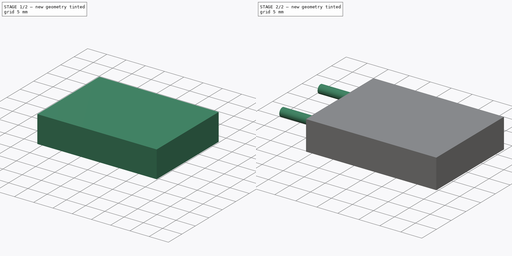
[diagram: build sequence overview — one tinted view per stage of 2, left to right]
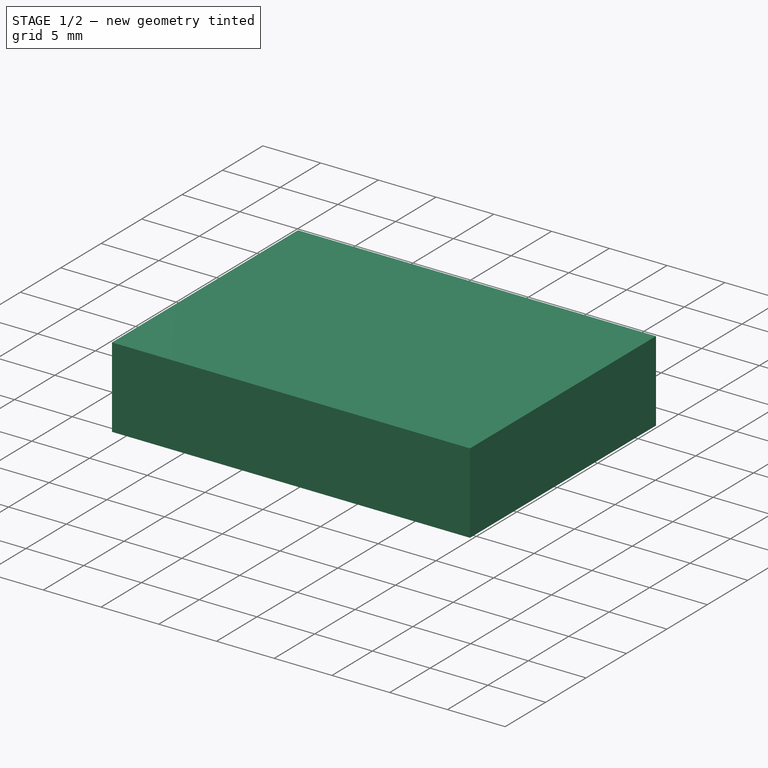
[diagram: stage 1 of 2 — iso view after this stage's code; geometry added in this stage tinted green]
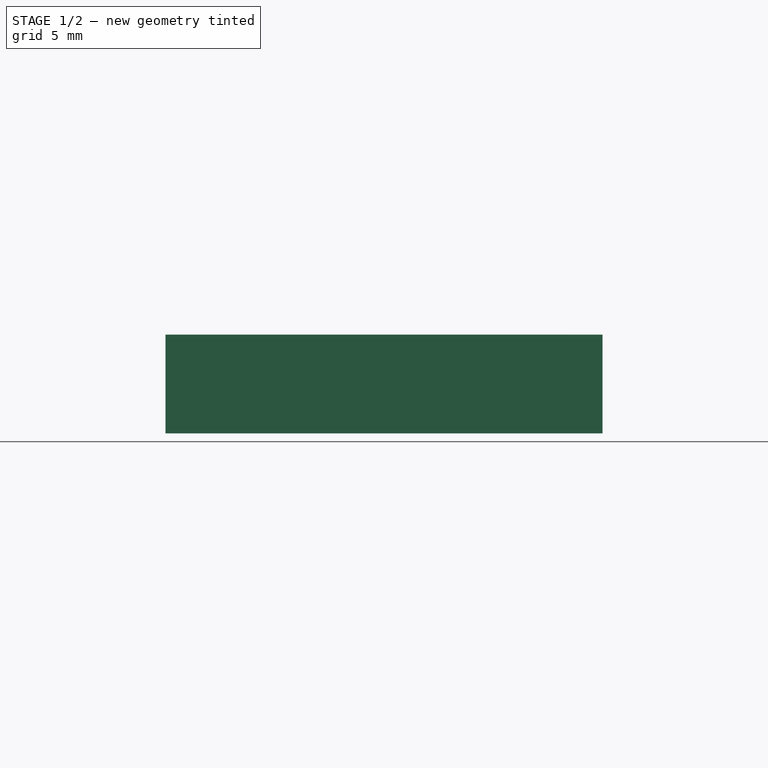
[diagram: stage 1 of 2 — front view after this stage's code; geometry added in this stage tinted green]
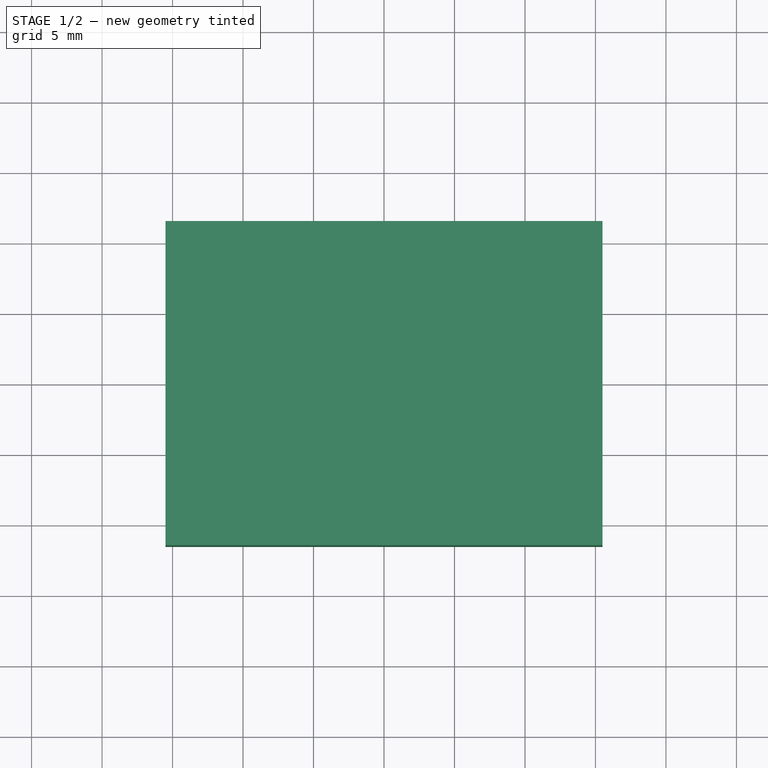
[diagram: stage 1 of 2 — top view after this stage's code; geometry added in this stage tinted green]
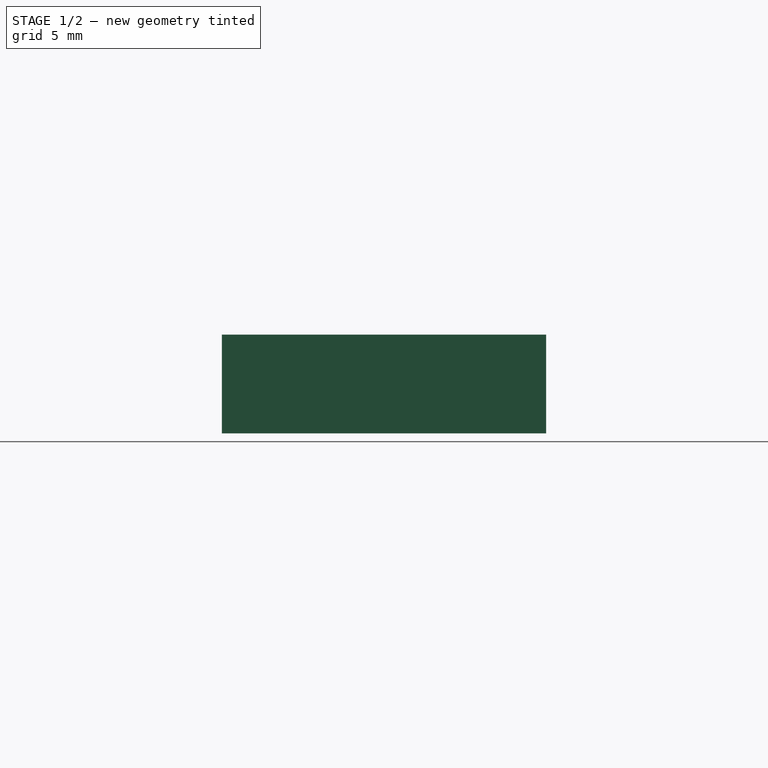
[diagram: stage 1 of 2 — right view after this stage's code; geometry added in this stage tinted green]
FCSTD DOCUMENT  (FreeCAD 0.18RUnknown)
Label: d4r2
License: All rights reserved
LicenseURL: http://en.wikipedia.org/wiki/All_rights_reserved
objects: Sketcher::SketchObject×2, PartDesign::Pad×2, PartDesign::Body×1
note: 7 computed .brp shape members not serialized (recipe doc carries the construction recipe); baked Part::Feature solids carry a one-line shape summary decoded from their .brp

FEATURE [Sketcher::SketchObject] Sketch
  MapMode = 5
  Support = -> [XY_Plane]
  sketch-geometry (4):
    g0: LineSegment StartX=-15.5 StartY=11.5 StartZ=0 EndX=15.5 EndY=11.5 EndZ=0
    g1: LineSegment StartX=15.5 StartY=-11.5 StartZ=0 EndX=-15.5 EndY=-11.5 EndZ=0
    g2: LineSegment StartX=-15.5 StartY=-11.5 StartZ=0 EndX=-15.5 EndY=11.5 EndZ=0
    g3: LineSegment StartX=15.5 StartY=11.5 StartZ=0 EndX=15.5 EndY=-11.5 EndZ=0
  constraints (11):
    c: Coincident(g1,g2)
    c: Coincident(g2,g0)
    c: Horizontal(g0)
    c: Horizontal(g1)
    c: Vertical(g2)
    c: DistanceX(g0,g0) = 31
    c: DistanceY(g1,g0) = 23
    c: Symmetric(g0,g1,g-1)
    c: Coincident(g3,g0)
    c: Coincident(g3,g1)
    c: Vertical(g3)
FEATURE [PartDesign::Pad] Pad
  Length = 7
  Length2 = 100
  Midplane = true
  Profile = -> Sketch
  Type = 0
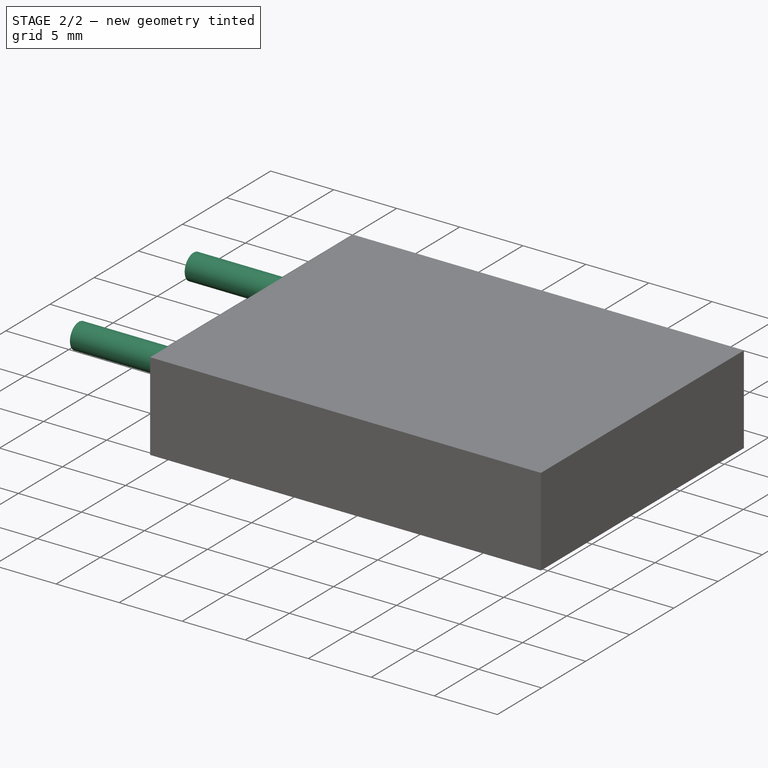
[diagram: stage 2 of 2 — iso view after this stage's code; geometry added in this stage tinted green]
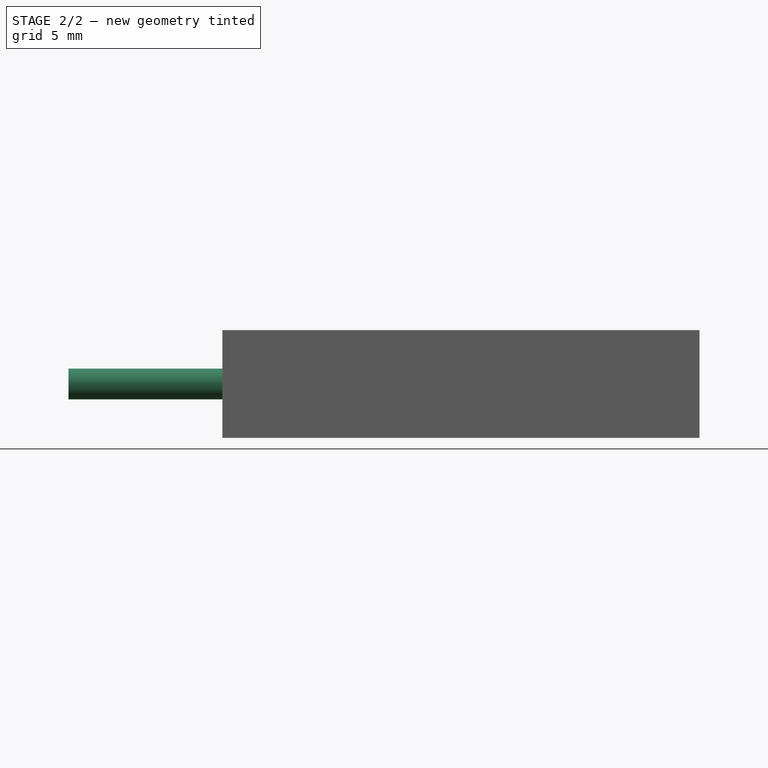
[diagram: stage 2 of 2 — front view after this stage's code; geometry added in this stage tinted green]
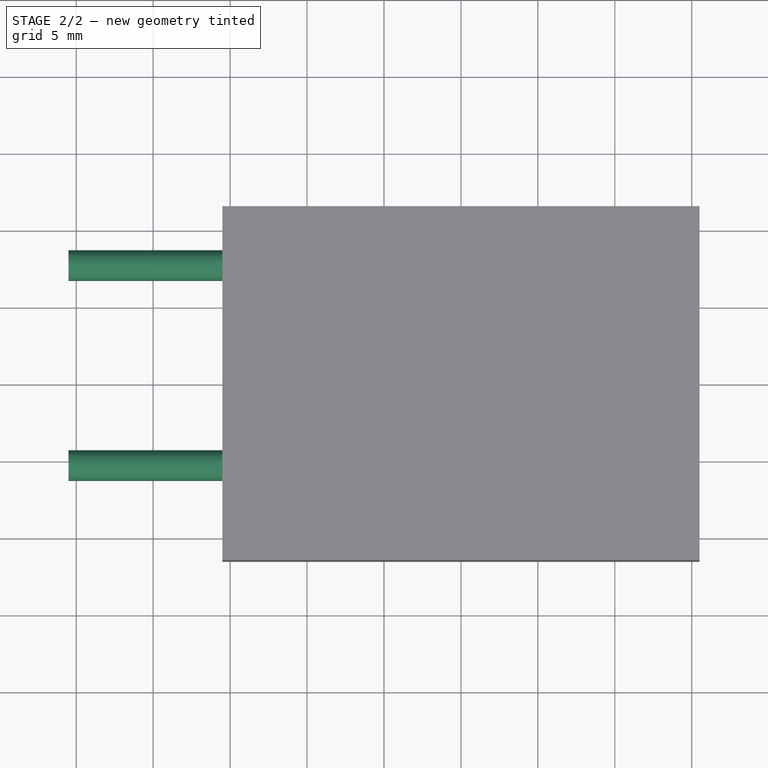
[diagram: stage 2 of 2 — top view after this stage's code; geometry added in this stage tinted green]
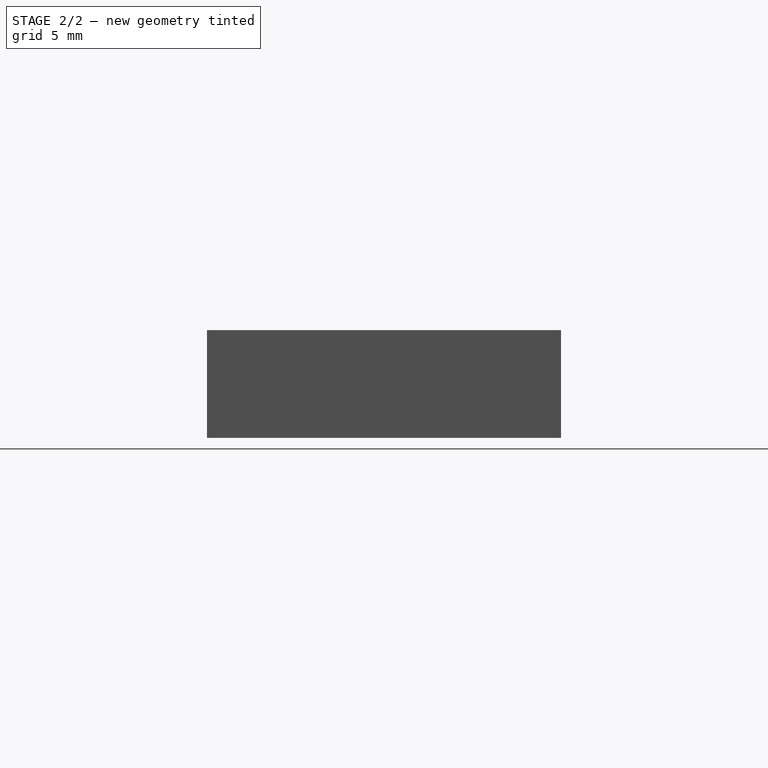
[diagram: stage 2 of 2 — right view after this stage's code; geometry added in this stage tinted green]
FEATURE [Sketcher::SketchObject] Sketch001
  MapMode = 5
  Placement = pos=(-15.5,0,0) rot=(0.57735,-0.57735,-0.57735;2.0944rad)
  Support = -> [Pad]
  sketch-geometry (2):
    g0: Circle CenterX=-7.69519 CenterY=2e-12 CenterZ=0 NormalX=0 NormalY=0 NormalZ=1 AngleXU=0 Radius=1
    g1: Circle CenterX=5.30481 CenterY=0 CenterZ=0 NormalX=0 NormalY=0 NormalZ=1 AngleXU=0 Radius=1
  constraints (3):
    c: DistanceX(g0,g1) = 13
    c: Equal(g0,g1)
    c: Radius(g0) = 1
FEATURE [PartDesign::Pad] Pad001
  BaseFeature = -> Pad
  Length = 10
  Length2 = 100
  Profile = -> Sketch001
  Type = 0
FEATURE [PartDesign::Body] Body
  Group = -> [Sketch,Pad,Sketch001,Pad001]
  Origin = -> Origin
  Tip = -> Pad001
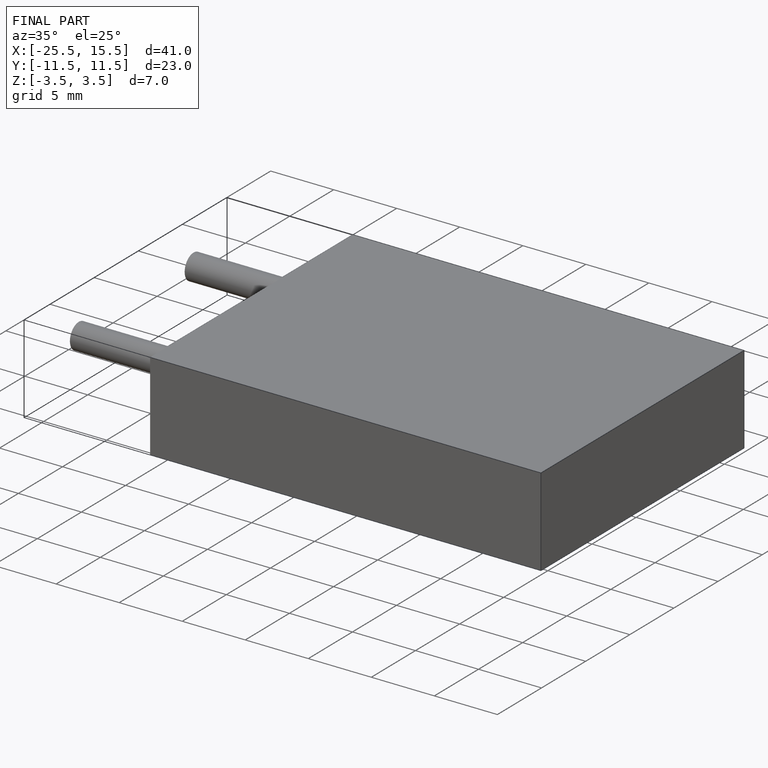
[diagram: finished part — iso view with bounding-box wireframe]
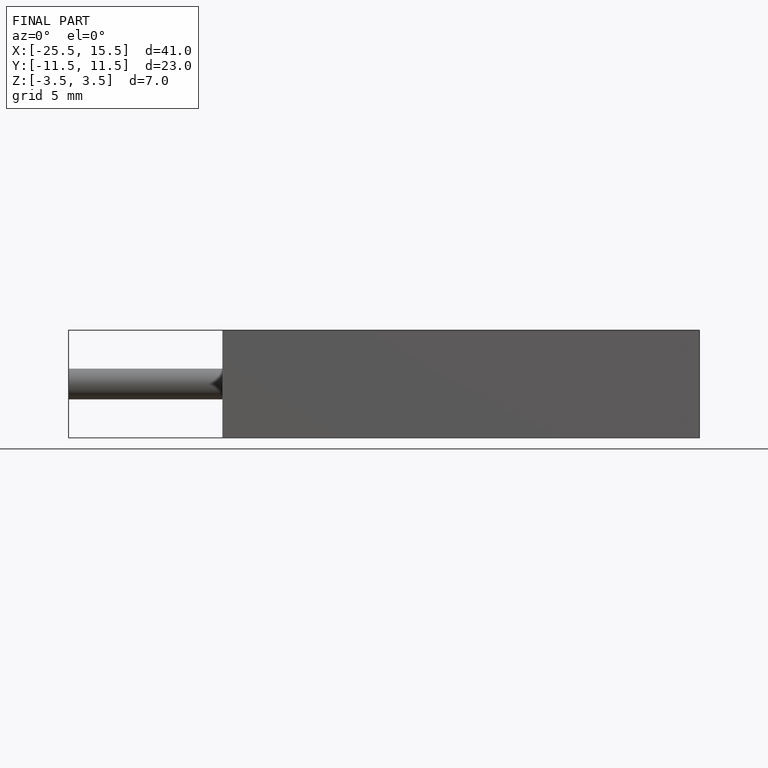
[diagram: finished part — front view with bounding-box wireframe]
